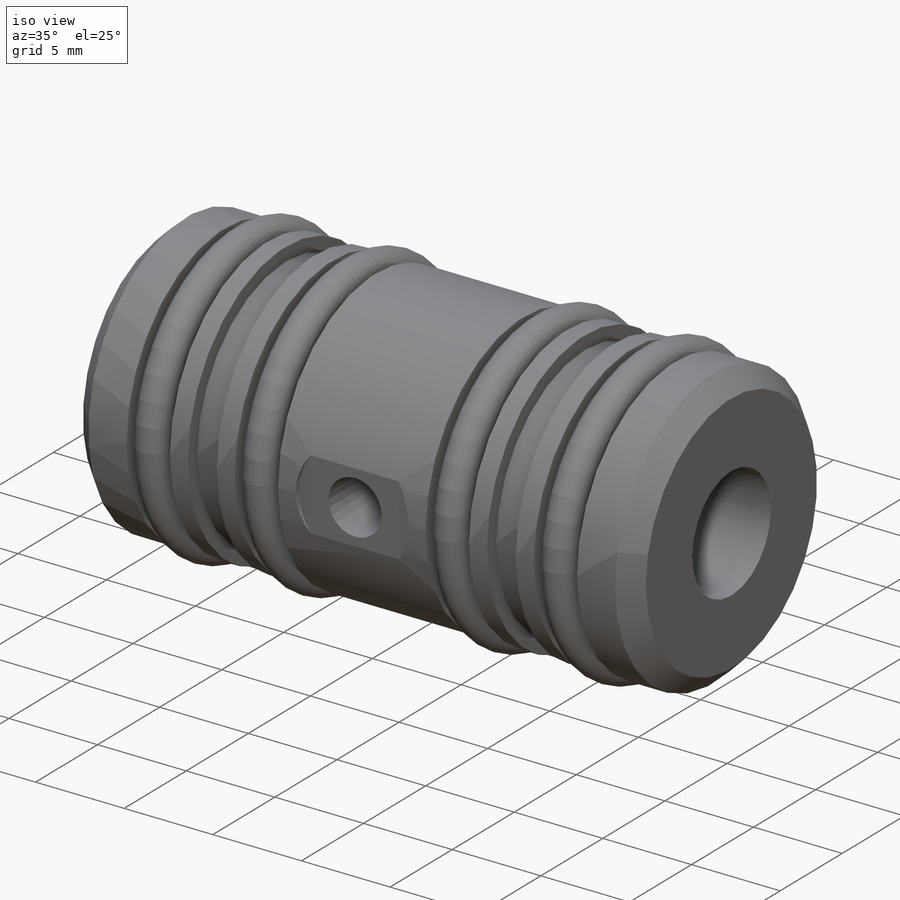
[diagram: iso view]
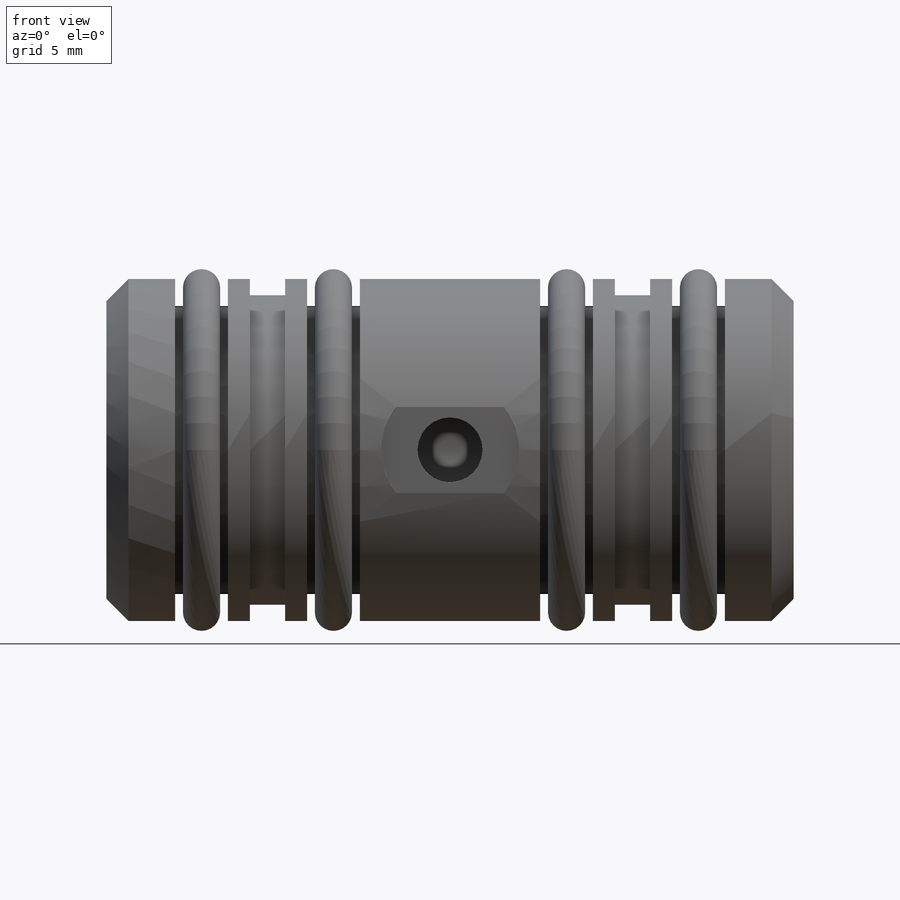
[diagram: front view]
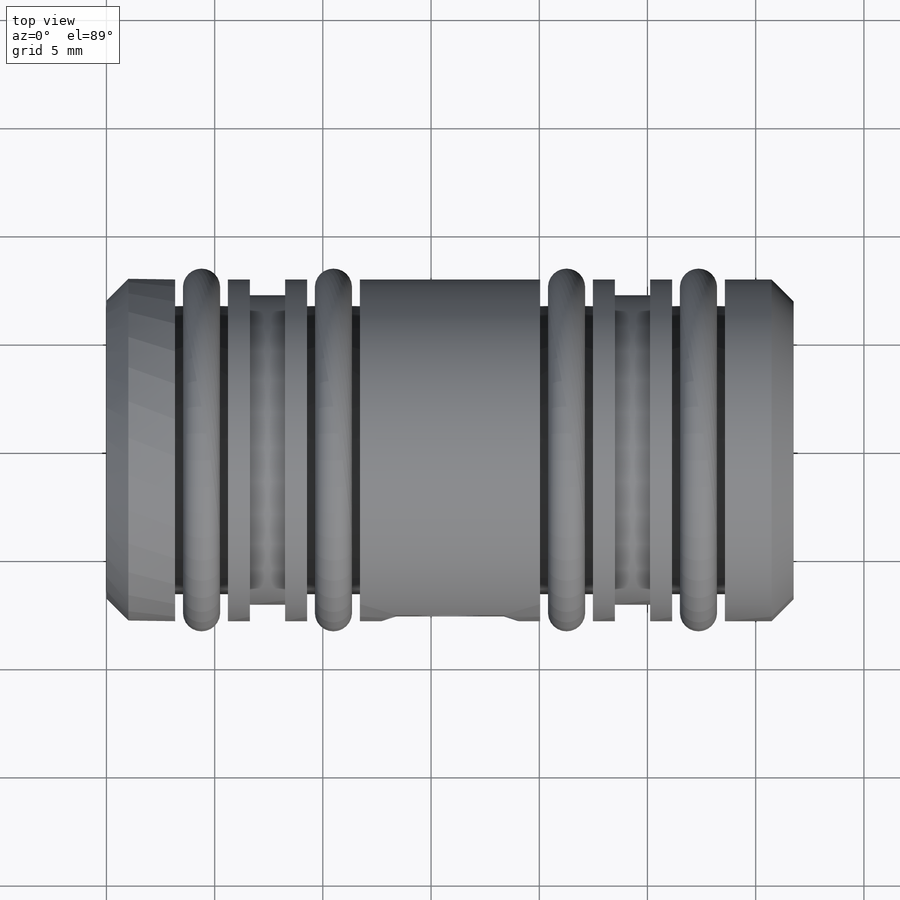
[diagram: top view]
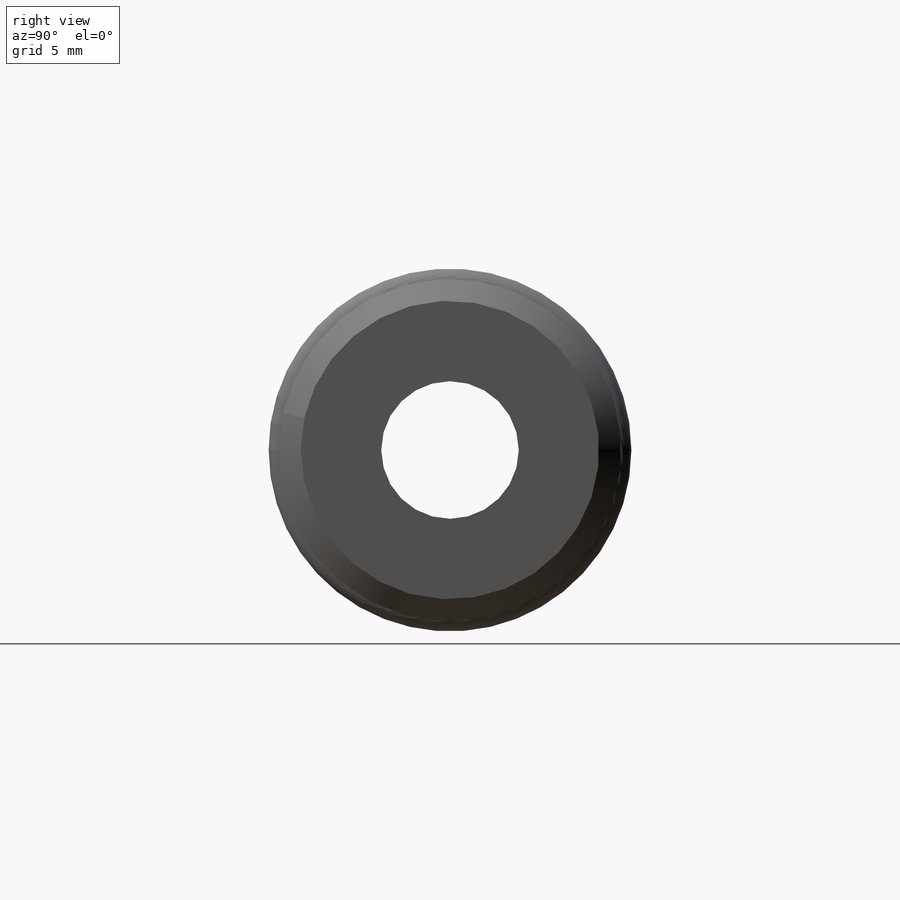
[diagram: right view]
SOLIDWORKS PART (.sldprt)
format: sldprt  version: not decoded by parser v0  size: 370,176 bytes
history: native  units: mm
features: sketch x6, revolve x2, hole x2, material x1, chamfer x1, plane x1 (+15 scaffold rows collapsed)
feature tree (28):
  scaffold x15  (default folders/planes/origin — collapsed)
  material  "Material <not specified>"
  sketch  "Sketch1"  dims[c1.Bore ID=13.02mm c1.OAL=31.75mm c1.Moglice groove width=5.9436mm c1.O-ring groove width=2.4384mm c1.Edge to 1st o-ring groove=3.175mm c1.Edge to 2nd o-ring groove=16.51mm c1.Bushing OD=23.67mm c1.O-ring groove dia=13.335mm c1.D9=~0.79375mm c1.Edge to 3rd o-ring groove=20.0406mm c1.edge to 4th o-ring groove=43.28mm c1.Edge to 1st moglice groove=9.0424mm c1.Edge to 2nd moglice groove=35.814mm c1.Moglice Groove Dia=14.3002mm c1.D1=1.016mm c1.D2=1.6256mm c1.D3=1.016mm c1.D4=~3.17754mm c1.D5=6.6675mm c1.D6=7.1501mm c1.D7=7.9121mm c1.D8=2.4384mm c2.D9=2.4384mm c2.D10=1.016mm c2.D11=1.6256mm c2.D12=1.016mm c2.D13=2.4384mm]
  revolve  "Revolve1"  Angle=360deg
  chamfer  "Chamfer1"  Distance=1.016mm Angle=45deg
  plane  "Plane1"  Offset=7.9121mm
  hole  "1/4 (0.25) Diameter Hole1"  Diameter=6.35mm Depth=0.254mm
  sketch  "3DSketch1"  dims[Edge to air hole=15.875mm]
  sketch  "Sketch2"  dims[hole-wizard template sketch: 47 standard entries collapsed; hole parameters kept: c15.Hole Depth=0.254mm c15.D3=~14.816244mm c15.Drill Angle=180.0deg]
  hole  "Air Hole"  Diameter=2.4892mm Depth=6.35mm
  sketch  "Sketch4"
  sketch  "Sketch3"  dims[hole-wizard template sketch: 30 standard entries collapsed; hole parameters kept: c8.Thread Major Dia.=3.0mm c8.Thread Depth=6.096mm c8.D5=~14.816244mm c8.Drill Angle=118.0deg]
  sketch  "Sketch5"  dims[c1.D1=~1.71704mm c1.D2=1.7526mm c1.D6=1.7526mm c2.D2=8.382mm c2.D3=1.2192mm c2.D4=1.22mm c2.D5=1.22mm c2.D6=1.22mm]
  revolve  "Revolve2"  Angle=360deg
decode coverage: 10 of 11 modeling features carry decoded parameters
note: ~ marks probable driven/reference dimensions
note: suppression state not decoded; provenance and decode notes live in map.json
